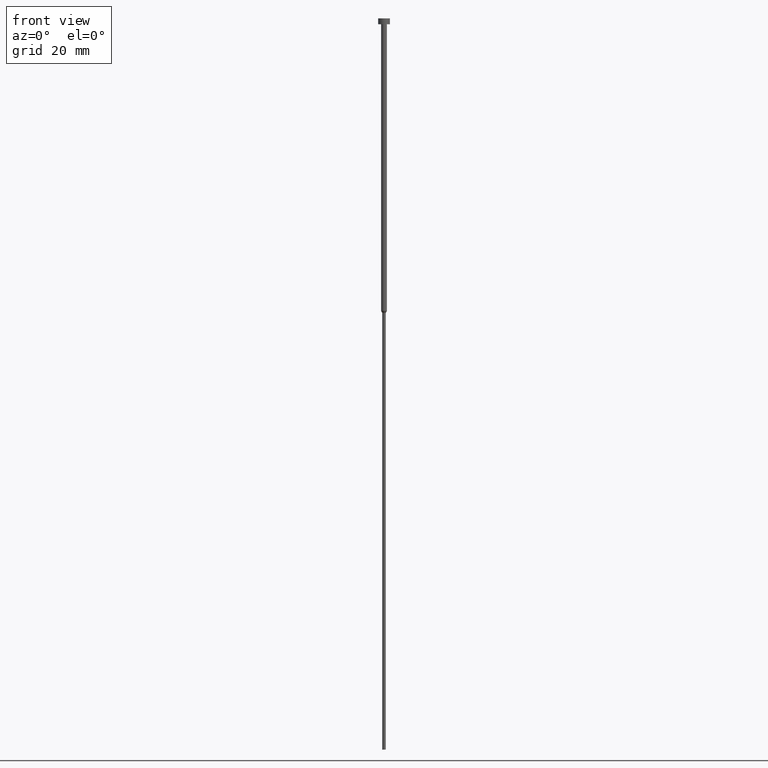
[diagram: clean part render]
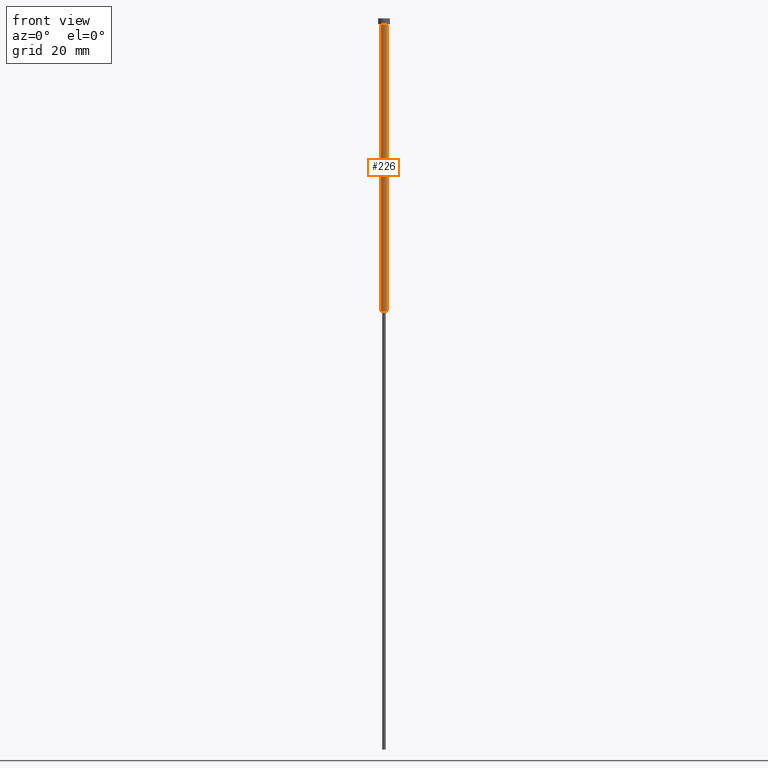
[diagram: same view with one face highlighted and labeled with its STEP entity id]
A machine part, front view. The second image highlights one B-rep face of the part: STEP entity #226.
In plain terms, the highlighted cylindrical surface (edge-blend (fillet) strip) has radius 1 mm, axis along (-0, -0, 1).
Its self-contained STEP definition (entity closure, byte-faithful):
#5 = CIRCLE ( 'NONE', #288, 1.000000000000003553 ) ;
#11 = VERTEX_POINT ( 'NONE', #24 ) ;
#22 = VECTOR ( 'NONE', #195, 1000.000000000000000 ) ;
#24 = CARTESIAN_POINT ( 'NONE',  ( 1.000000000000003109, 0.000000000000000000, -100.0000000000000000 ) ) ;
#28 = CARTESIAN_POINT ( 'NONE',  ( 0.000000000000000000, 0.000000000000000000, 0.000000000000000000 ) ) ;
#29 = DIRECTION ( 'NONE',  ( 1.000000000000000000, 0.000000000000000000, 0.000000000000000000 ) ) ;
#41 = DIRECTION ( 'NONE',  ( -0.000000000000000000, -0.000000000000000000, 1.000000000000000000 ) ) ;
#43 = DIRECTION ( 'NONE',  ( -0.000000000000000000, -0.000000000000000000, 1.000000000000000000 ) ) ;
#46 = DIRECTION ( 'NONE',  ( -0.000000000000000000, -0.000000000000000000, 1.000000000000000000 ) ) ;
#60 = CYLINDRICAL_SURFACE ( 'NONE', #145, 1.000000000000003331 ) ;
#74 = LINE ( 'NONE', #122, #250 ) ;
#88 = FACE_OUTER_BOUND ( 'NONE', #93, .T. ) ;
#93 = EDGE_LOOP ( 'NONE', ( #157, #135, #290, #160 ) ) ;
#94 = EDGE_CURVE ( 'NONE', #293, #121, #74, .T. ) ;
#96 = CARTESIAN_POINT ( 'NONE',  ( -1.000000000000003553, 1.224646799147357398E-16, -2.000000000000000444 ) ) ;
#118 = CARTESIAN_POINT ( 'NONE',  ( 1.000000000000003331, 0.000000000000000000, 0.000000000000000000 ) ) ;
#120 = EDGE_CURVE ( 'NONE', #293, #11, #147, .T. ) ;
#121 = VERTEX_POINT ( 'NONE', #96 ) ;
#122 = CARTESIAN_POINT ( 'NONE',  ( -1.000000000000003331, 1.224646799147357151E-16, 0.000000000000000000 ) ) ;
#130 = CARTESIAN_POINT ( 'NONE',  ( 1.000000000000003553, 0.000000000000000000, -2.000000000000000444 ) ) ;
#134 = AXIS2_PLACEMENT_3D ( 'NONE', #313, #43, #29 ) ;
#135 = ORIENTED_EDGE ( 'NONE', *, *, #120, .T. ) ;
#141 = LINE ( 'NONE', #118, #22 ) ;
#145 = AXIS2_PLACEMENT_3D ( 'NONE', #28, #188, #153 ) ;
#147 = CIRCLE ( 'NONE', #134, 1.000000000000003109 ) ;
#153 = DIRECTION ( 'NONE',  ( 1.000000000000000000, 0.000000000000000000, 0.000000000000000000 ) ) ;
#157 = ORIENTED_EDGE ( 'NONE', *, *, #94, .F. ) ;
#160 = ORIENTED_EDGE ( 'NONE', *, *, #339, .F. ) ;
#188 = DIRECTION ( 'NONE',  ( -0.000000000000000000, -0.000000000000000000, 1.000000000000000000 ) ) ;
#195 = DIRECTION ( 'NONE',  ( -0.000000000000000000, -0.000000000000000000, 1.000000000000000000 ) ) ;
#226 = ADVANCED_FACE ( 'NONE', ( #88 ), #60, .T. ) ;
#250 = VECTOR ( 'NONE', #41, 1000.000000000000000 ) ;
#259 = DIRECTION ( 'NONE',  ( 1.000000000000000000, 0.000000000000000000, 0.000000000000000000 ) ) ;
#288 = AXIS2_PLACEMENT_3D ( 'NONE', #315, #46, #259 ) ;
#290 = ORIENTED_EDGE ( 'NONE', *, *, #353, .T. ) ;
#293 = VERTEX_POINT ( 'NONE', #330 ) ;
#313 = CARTESIAN_POINT ( 'NONE',  ( 0.000000000000000000, 0.000000000000000000, -100.0000000000000000 ) ) ;
#315 = CARTESIAN_POINT ( 'NONE',  ( 0.000000000000000000, 0.000000000000000000, -2.000000000000000444 ) ) ;
#330 = CARTESIAN_POINT ( 'NONE',  ( -1.000000000000003109, 1.224646799147356905E-16, -100.0000000000000000 ) ) ;
#339 = EDGE_CURVE ( 'NONE', #121, #340, #5, .T. ) ;
#340 = VERTEX_POINT ( 'NONE', #130 ) ;
#353 = EDGE_CURVE ( 'NONE', #11, #340, #141, .T. ) ;